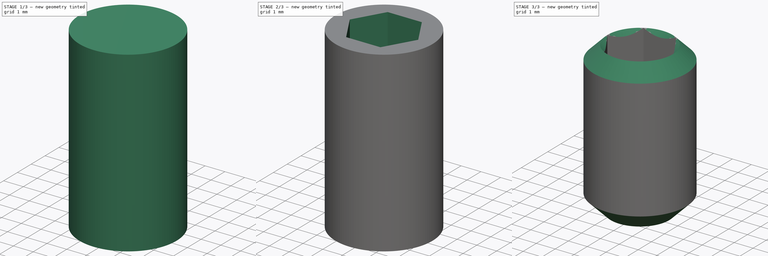
[diagram: build sequence overview — one tinted view per stage of 3, left to right]
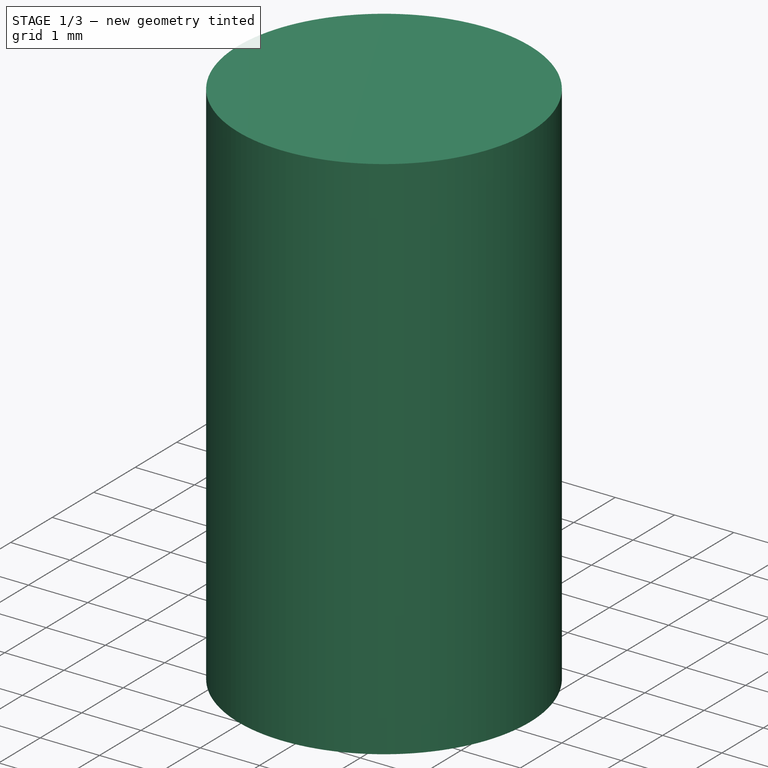
[diagram: stage 1 of 3 — iso view after this stage's code; geometry added in this stage tinted green]
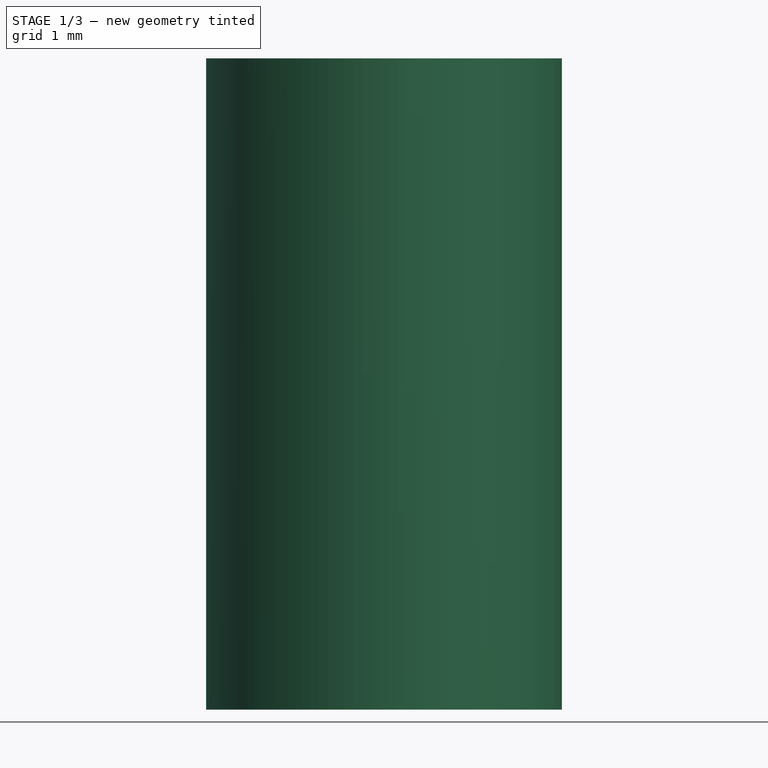
[diagram: stage 1 of 3 — front view after this stage's code; geometry added in this stage tinted green]
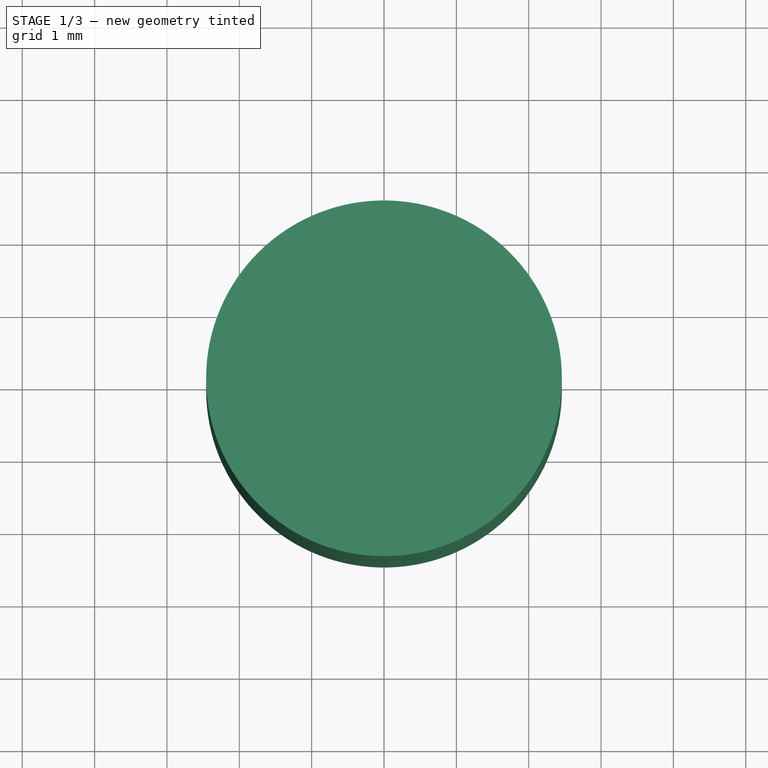
[diagram: stage 1 of 3 — top view after this stage's code; geometry added in this stage tinted green]
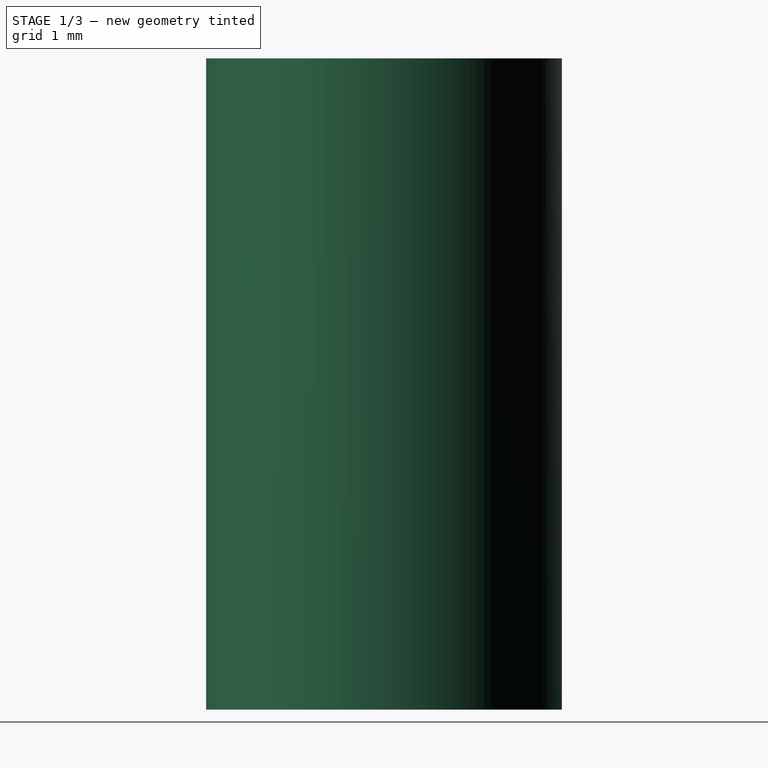
[diagram: stage 1 of 3 — right view after this stage's code; geometry added in this stage tinted green]
FCSTD DOCUMENT  (FreeCAD 0.19R21329 (Git))
Label: ISO4029_SetScrewCupPoint
Comment: FreeCAD-Library by episource -- https://github.com/episource/FreeCAD-Library
License: Creative Commons Attribution
LicenseURL: http://creativecommons.org/licenses/by/4.0/
objects: Sketcher::SketchObject×3, PartDesign::CoordinateSystem×2, Part::FeaturePython×1, App::DocumentObjectGroup×1, PartDesign::FeatureBase×1, PartDesign::Pocket×1, PartDesign::Revolution×1, PartDesign::Groove×1, PartDesign::Body×1, App::Part×1
note: 14 computed .brp shape members not serialized (recipe doc carries the construction recipe); baked Part::Feature solids carry a one-line shape summary decoded from their .brp

FEATURE [Part::FeaturePython] ScrewTap  label="M6x8.0-ScrewTap"  # Fasteners workbench fastener (typed FeaturePython)
  diameter = 8
  invert = false
  length = 8
  matchOuter = false
  offset = 0
  thread = false
  expr: length = <<Variables>>.Length
FEATURE [Sketcher::SketchObject] Sketch  label="SketchHexagonKey"
  MapMode = 5
  Support = -> [XY_Plane001]
  expr: Constraints[19] = <<Variables>>.HeadHoleIncircle
  sketch-geometry (7):
    g0: LineSegment StartX=1.73205 StartY=-4e-15 StartZ=0 EndX=0.866025 EndY=1.5 EndZ=0
    g1: LineSegment StartX=0.866025 StartY=1.5 StartZ=0 EndX=-0.866025 EndY=1.5 EndZ=0
    g2: LineSegment StartX=-0.866025 StartY=1.5 StartZ=0 EndX=-1.73205 EndY=0 EndZ=0
    g3: LineSegment StartX=-1.73205 StartY=0 StartZ=0 EndX=-0.866025 EndY=-1.5 EndZ=0
    g4: LineSegment StartX=-0.866025 StartY=-1.5 StartZ=0 EndX=0.866025 EndY=-1.5 EndZ=0
    g5: LineSegment StartX=0.866025 StartY=-1.5 StartZ=0 EndX=1.73205 EndY=-4e-15 EndZ=0
    g6: Circle [constr] CenterX=0 CenterY=0 CenterZ=0 NormalX=0 NormalY=0 NormalZ=1 AngleXU=0 Radius=1.73205
  constraints (16):
    c: Coincident(g0,g1)
    c: Coincident(g1,g2)
    c: Coincident(g2,g3)
    c: Coincident(g3,g4)
    c: Coincident(g4,g5)
    c: Coincident(g5,g0)
    c: Equal(g0, g1-g5) x5
    c: PointOnObject(g0,g6)
    c: PointOnObject(g1,g6)
    c: PointOnObject(g2,g6)
    c: PointOnObject(g3,g6)
    c: PointOnObject(g4,g6)
    c: PointOnObject(g5,g6)
    c: Coincident(g6,g-1)
    c: PointOnObject(g2,g-1)
    c: Distance(g1,g0) = 3
FEATURE [App::DocumentObjectGroup] Group  label="Variables"
  CrestDiameter = 1.5
  HeadHoleDepth = 3.5
  HeadHoleIncircle = 3
  HeadHolePerimeter = 3.4641
  Length = 8
  expr: HeadHolePerimeter = HeadHoleIncircle * 2 / sqrt(3)
FEATURE [Sketcher::SketchObject] Sketch001  label="SketchBevels"
  ExternalGeometry = -> [Sketch]
  MapMode = 5
  Placement = pos=(0,0,0) rot=(1,0,0;1.5708rad)
  Support = -> [XZ_Plane001]
  expr: Constraints[2] = <<Variables>>.Length + 1mm
  expr: Constraints[18] = <<Variables>>.Length
  sketch-geometry (11):
    g0: LineSegment StartX=1.55877 StartY=-8 StartZ=0 EndX=2.45873 EndY=-7.10004 EndZ=0
    g1: LineSegment StartX=2.45873 StartY=-7.10004 StartZ=0 EndX=2.45873 EndY=-9 EndZ=0
    g2: LineSegment StartX=2.45873 StartY=-9 StartZ=0 EndX=0 EndY=-9 EndZ=0
    g3: LineSegment StartX=0 StartY=-7.10004 StartZ=0 EndX=0 EndY=-9 EndZ=0
    g4: LineSegment StartX=2.45873 StartY=-0.726683 StartZ=0 EndX=2.45873 EndY=1 EndZ=0
    g5: LineSegment StartX=2.45873 StartY=1 StartZ=0 EndX=0.866025 EndY=1 EndZ=0
    g6: LineSegment StartX=0.866025 StartY=1 StartZ=0 EndX=0.866025 EndY=-0.866025 EndZ=0
    g7: LineSegment StartX=0.866025 StartY=-0.866025 StartZ=0 EndX=1.73205 EndY=0 EndZ=0
    g8: LineSegment StartX=1.73205 StartY=0 StartZ=0 EndX=2.45873 EndY=-0.726683 EndZ=0
    g9: LineSegment StartX=1.55877 StartY=-8 StartZ=0 EndX=0 EndY=-7.10004 EndZ=0
    g10: LineSegment [constr] StartX=0 StartY=-7.10004 StartZ=0 EndX=2.45873 EndY=-7.10004 EndZ=0
  constraints (26):
    c: Coincident(g0,g1)
    c: Coincident(g1,g2)
    c: DistanceY(g2,g-1) = 9
    c: Coincident(g3,g2)
    c: Horizontal(g2)
    c: Angle(g0,g1) = 0.785398
    c: Vertical(g4)
    c: Coincident(g4,g5)
    c: Horizontal(g5)
    c: Coincident(g5,g6)
    c: Vertical(g6)
    c: Coincident(g6,g7)
    c: Coincident(g7,g8)
    c: Coincident(g8,g4)
    c: Perpendicular(g8,g7)
    c: Angle(g4,g8) = 0.785398
    c: Coincident(g9,g0)
    c: Coincident(g9,g3)
    c: DistanceY(g0,g-1) = 8
    c: Angle(g3,g9) = 1.0472
    c: Vertical(g3)
    c: Vertical(g1)
    c: PointOnObject(g3,g-2)
    c: Coincident(g10,g3)
    c: Coincident(g10,g0)
    c: Horizontal(g10)
FEATURE [Sketcher::SketchObject] Sketch002  label="InnerHeadHexagonBevel"
  ExternalGeometry = -> [Sketch]
  MapMode = 5
  Placement = pos=(0,0,0) rot=(1,0,0;1.5708rad)
  Support = -> [XZ_Plane001]
  expr: Constraints[2] = <<Variables>>.HeadHoleDepth
  sketch-geometry (4):
    g0: LineSegment [constr] StartX=1.73205 StartY=0 StartZ=0 EndX=1.73205 EndY=-3.5 EndZ=0
    g1: LineSegment StartX=1.73205 StartY=-3.5 StartZ=0 EndX=0 EndY=-4.5 EndZ=0
    g2: LineSegment StartX=0 StartY=-4.5 StartZ=0 EndX=1.73205 EndY=-4.5 EndZ=0
    g3: LineSegment StartX=1.73205 StartY=-4.5 StartZ=0 EndX=1.73205 EndY=-3.5 EndZ=0
  constraints (12):
    c: Coincident(g0,g-3)
    c: Vertical(g0)
    c: DistanceY(g0,g0) = 3.5
    c: Coincident(g0,g1)
    c: Coincident(g1,g2)
    c: Horizontal(g2)
    c: Coincident(g2,g3)
    c: Coincident(g3,g1)
    c: Vertical(g3)
    c: PointOnObject(g1,g-2)
    c: Angle(g1,g3) = 1.0472
    c: DistanceY(g2,g-1) = 4.5
FEATURE [PartDesign::FeatureBase] BaseFeature
  BaseFeature = -> ScrewTap
  Placement = pos=(0,0,-1) rot=(0,0,1;0rad)
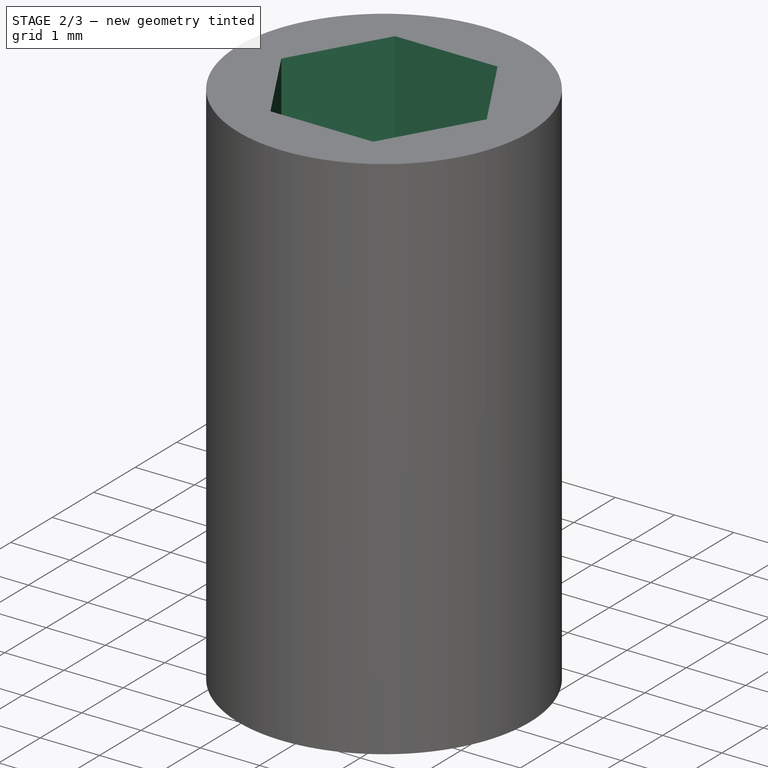
[diagram: stage 2 of 3 — iso view after this stage's code; geometry added in this stage tinted green]
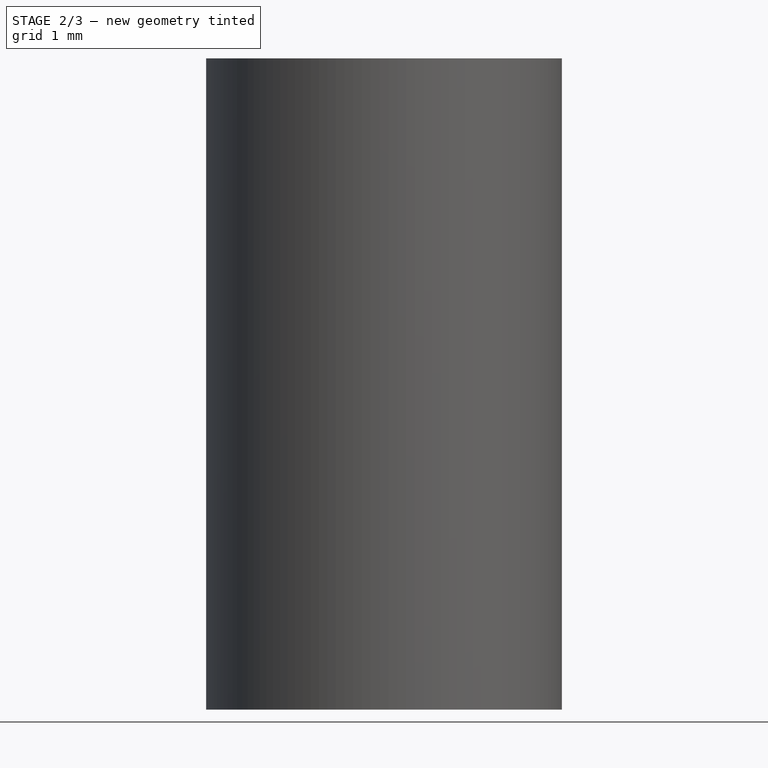
[diagram: stage 2 of 3 — front view after this stage's code; geometry added in this stage tinted green]
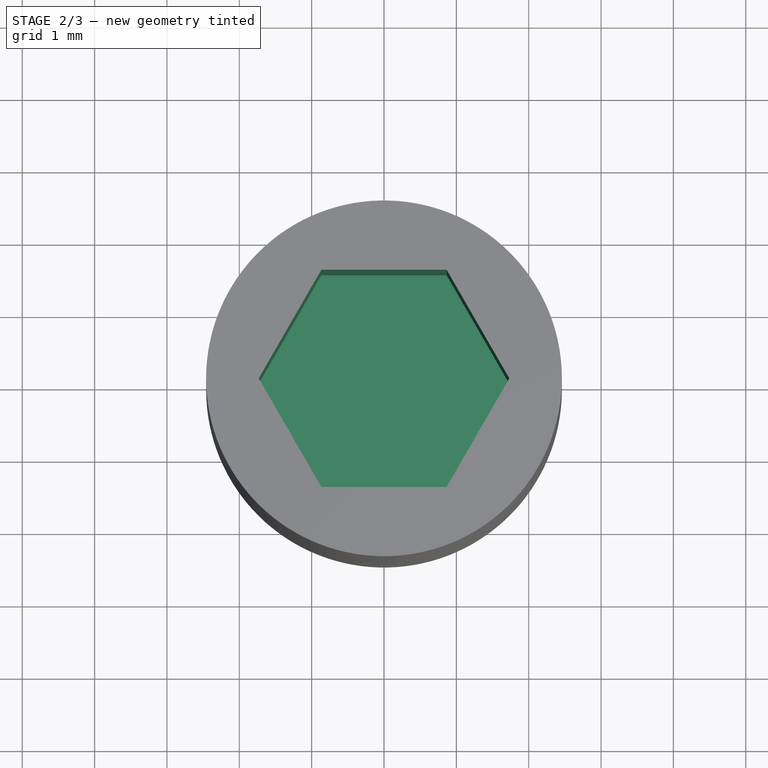
[diagram: stage 2 of 3 — top view after this stage's code; geometry added in this stage tinted green]
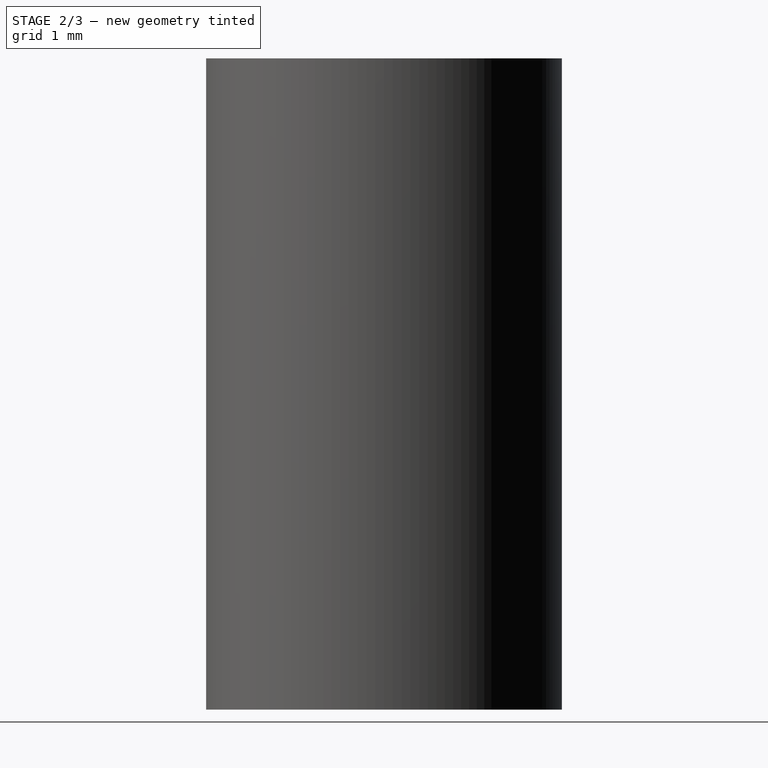
[diagram: stage 2 of 3 — right view after this stage's code; geometry added in this stage tinted green]
FEATURE [PartDesign::Pocket] Pocket  label="HeadHole"
  BaseFeature = -> BaseFeature
  Length = 4.36603
  Length2 = 100
  Placement = pos=(0,0,-1) rot=(0,0,1;0rad)
  Profile = -> Sketch
  Type = 0
  expr: Length = <<Variables>>.HeadHoleDepth + <<Variables>>.HeadHoleIncircle / 2 / tan(60)
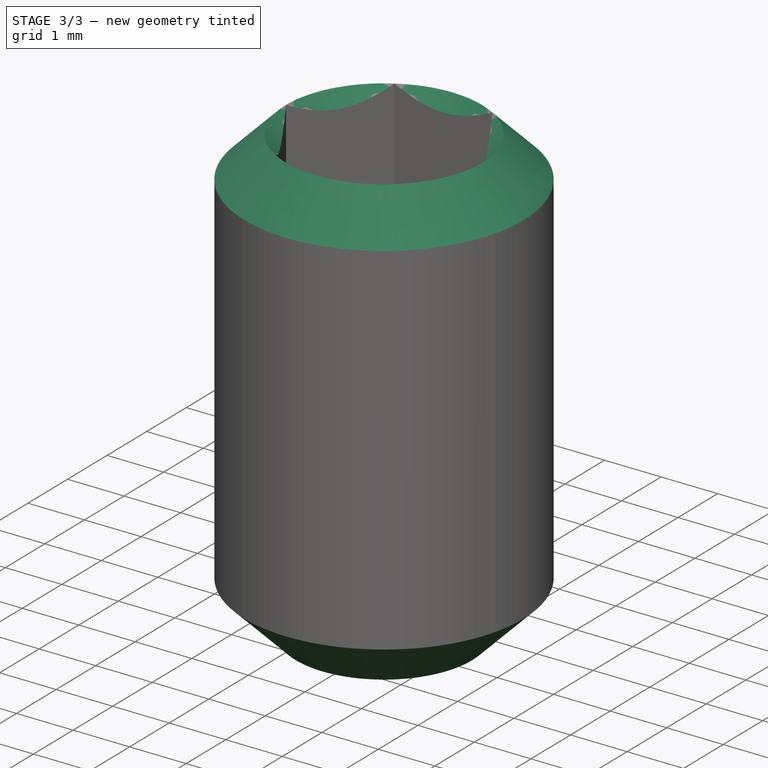
[diagram: stage 3 of 3 — iso view after this stage's code; geometry added in this stage tinted green]
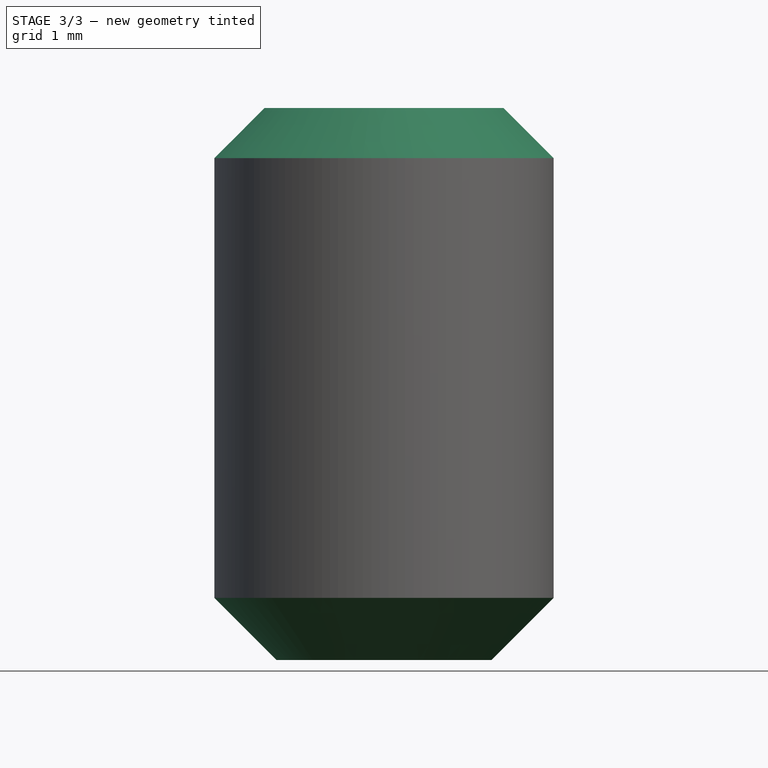
[diagram: stage 3 of 3 — front view after this stage's code; geometry added in this stage tinted green]
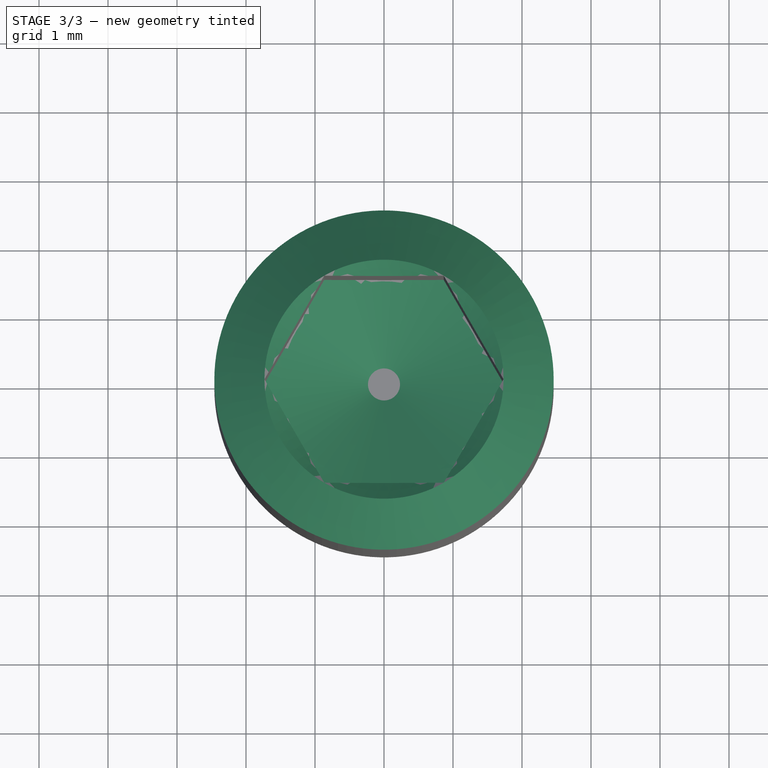
[diagram: stage 3 of 3 — top view after this stage's code; geometry added in this stage tinted green]
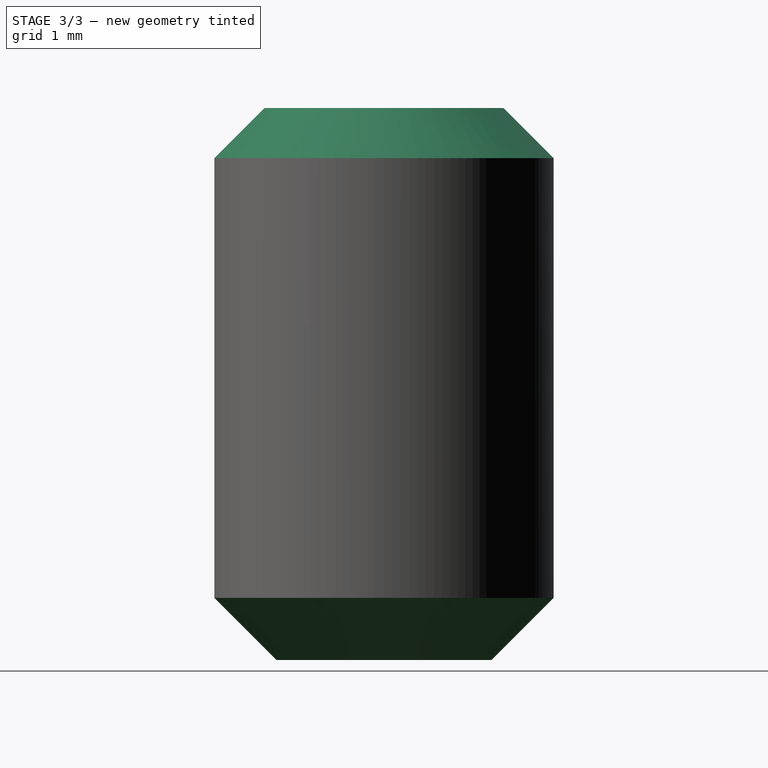
[diagram: stage 3 of 3 — right view after this stage's code; geometry added in this stage tinted green]
FEATURE [PartDesign::Revolution] Revolution
  Angle = 360
  Axis = (0,-2e-16,1)
  Base = (0,0,0)
  BaseFeature = -> Pocket
  Placement = pos=(0,0,-1) rot=(0,0,1;0rad)
  Profile = -> Sketch002
  ReferenceAxis = -> Sketch002 [V_Axis]
FEATURE [PartDesign::Groove] Groove  label="Bevels"
  Angle = 360
  Axis = (0,-2e-16,1)
  Base = (0,0,0)
  BaseFeature = -> Revolution
  Placement = pos=(0,0,-1) rot=(0,0,1;0rad)
  Profile = -> Sketch001
  ReferenceAxis = -> Sketch001 [V_Axis]
FEATURE [PartDesign::Body] Body
  BaseFeature = -> ScrewTap
  Group = -> [BaseFeature,Pocket,Sketch,Revolution,Sketch001,Groove,Sketch002]
  Origin = -> Origin001
  Tip = -> Revolution
FEATURE [PartDesign::CoordinateSystem] AssyTop
  AttacherType = Attacher::AttachEngine3D
  MapMode = 5
  Support = -> [BaseFeature]
FEATURE [PartDesign::CoordinateSystem] AssyBottom
  AttacherType = Attacher::AttachEngine3D
  AttachmentOffset = pos=(0,0,0) rot=(1,0,0;3.14159rad)
  MapMode = 5
  Placement = pos=(0,0,-9) rot=(0,0,1;0rad)
  Support = -> [BaseFeature]
FEATURE [App::Part] Part  label="ISO4029_SetScrewCupPoint"
  Group = -> [Body,ScrewTap,Group,AssyTop,AssyBottom]
  Origin = -> Origin
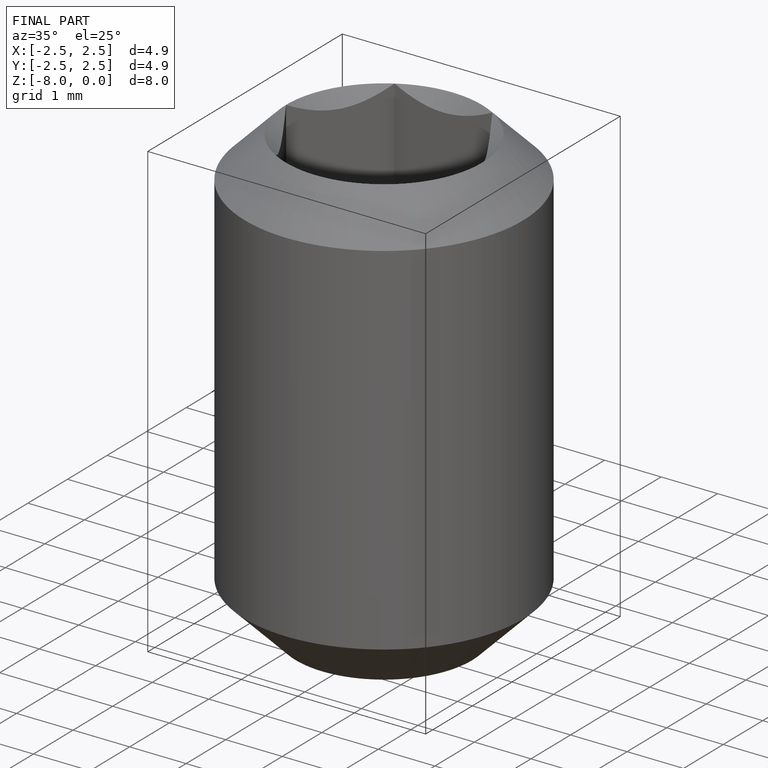
[diagram: finished part — iso view with bounding-box wireframe]
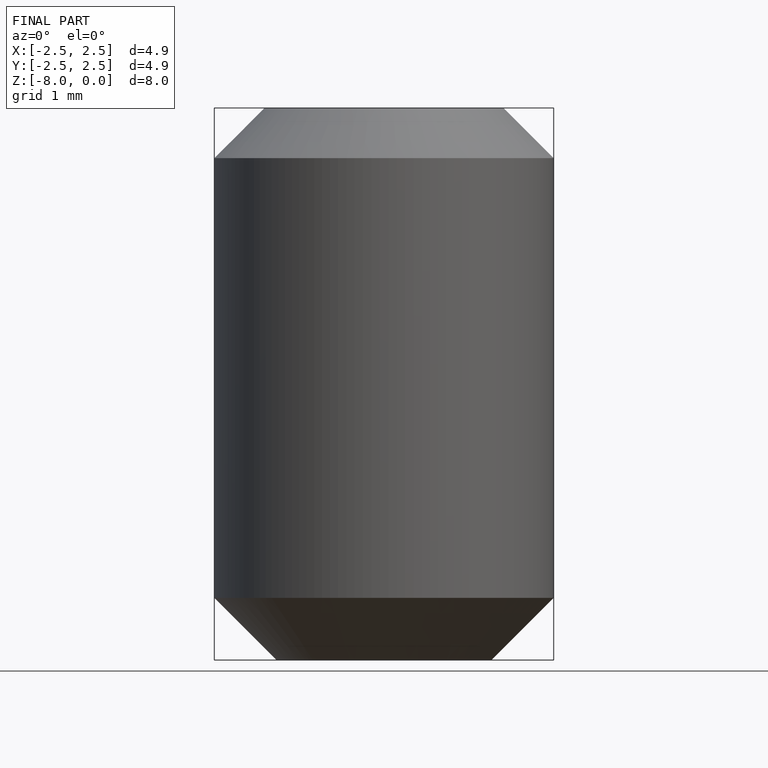
[diagram: finished part — front view with bounding-box wireframe]
